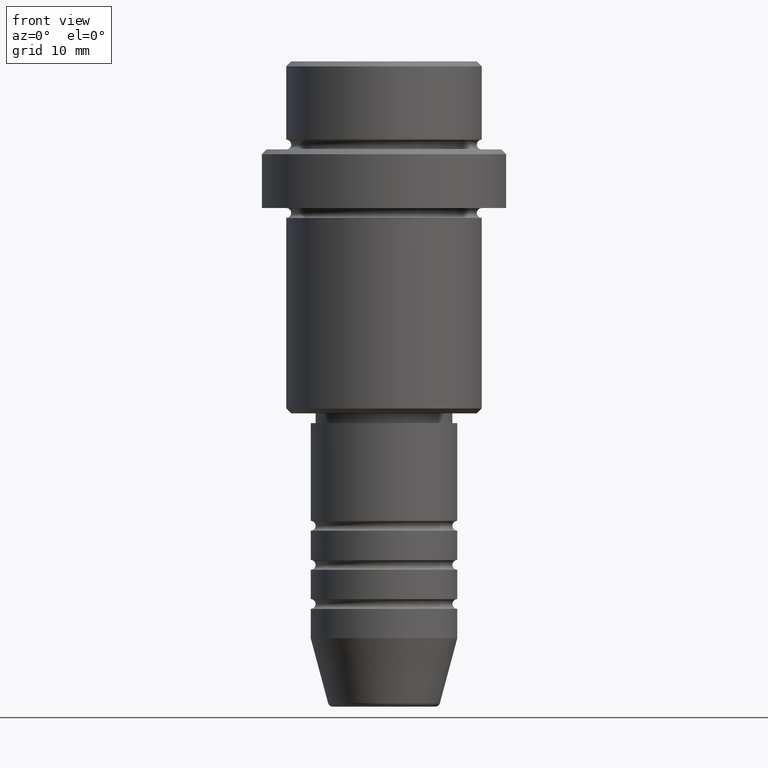
[diagram: clean part render]
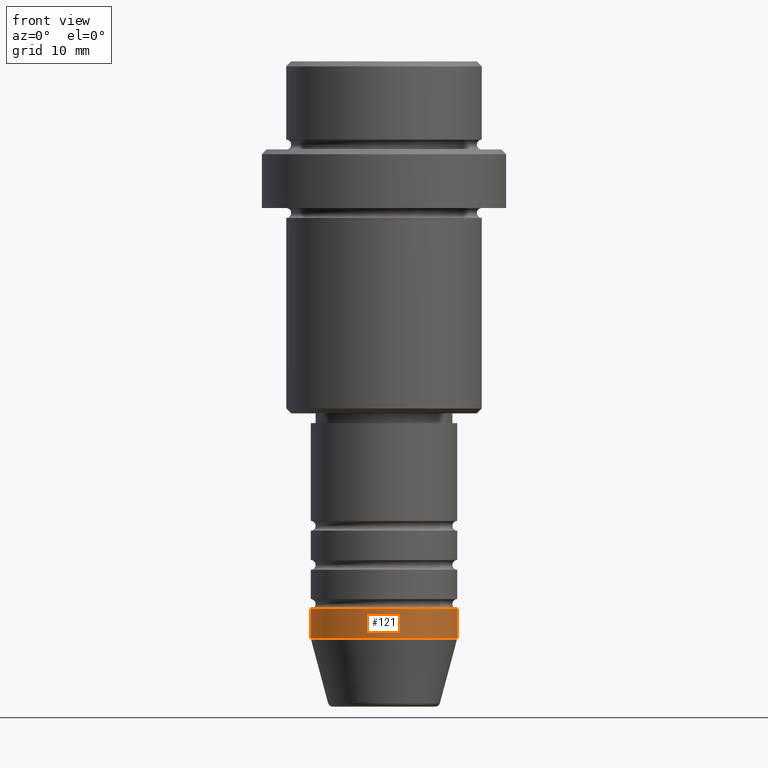
[diagram: same view with one face highlighted and labeled with its STEP entity id]
A machine part, front view. The second image highlights one B-rep face of the part: STEP entity #121.
In plain terms, the highlighted cylindrical surface (partial cylindrical patch) has radius 7.5 mm, axis along (-0, -0, 1).
Its self-contained STEP definition (entity closure, byte-faithful):
#40 = VERTEX_POINT ( 'NONE', #570 ) ;
#76 = CIRCLE ( 'NONE', #441, 7.500000000000000000 ) ;
#104 = CARTESIAN_POINT ( 'NONE',  ( -7.500000000000000000, 9.184850993605147944E-16, 0.000000000000000000 ) ) ;
#121 = ADVANCED_FACE ( 'NONE', ( #1340 ), #688, .T. ) ;
#138 = CARTESIAN_POINT ( 'NONE',  ( 7.500000000000000000, 0.000000000000000000, -59.00000000000000000 ) ) ;
#140 = ORIENTED_EDGE ( 'NONE', *, *, #1179, .F. ) ;
#166 = CARTESIAN_POINT ( 'NONE',  ( 7.500000000000000000, 0.000000000000000000, 0.000000000000000000 ) ) ;
#178 = AXIS2_PLACEMENT_3D ( 'NONE', #1260, #576, #1127 ) ;
#179 = LINE ( 'NONE', #166, #830 ) ;
#198 = LINE ( 'NONE', #104, #267 ) ;
#204 = CARTESIAN_POINT ( 'NONE',  ( -7.500000000000000000, 9.184850993605147944E-16, -59.00000000000000000 ) ) ;
#267 = VECTOR ( 'NONE', #1065, 1000.000000000000000 ) ;
#294 = EDGE_LOOP ( 'NONE', ( #584, #1379, #1276, #140 ) ) ;
#300 = DIRECTION ( 'NONE',  ( -0.000000000000000000, -0.000000000000000000, 1.000000000000000000 ) ) ;
#311 = CARTESIAN_POINT ( 'NONE',  ( 7.500000000000000000, 0.000000000000000000, -55.99999999999999289 ) ) ;
#397 = AXIS2_PLACEMENT_3D ( 'NONE', #782, #891, #988 ) ;
#441 = AXIS2_PLACEMENT_3D ( 'NONE', #525, #300, #975 ) ;
#490 = VERTEX_POINT ( 'NONE', #204 ) ;
#525 = CARTESIAN_POINT ( 'NONE',  ( 0.000000000000000000, 0.000000000000000000, -59.00000000000000000 ) ) ;
#570 = CARTESIAN_POINT ( 'NONE',  ( -7.500000000000000000, 9.184850993605147944E-16, -55.99999999999999289 ) ) ;
#576 = DIRECTION ( 'NONE',  ( -0.000000000000000000, -0.000000000000000000, 1.000000000000000000 ) ) ;
#584 = ORIENTED_EDGE ( 'NONE', *, *, #599, .F. ) ;
#599 = EDGE_CURVE ( 'NONE', #490, #40, #198, .T. ) ;
#618 = VERTEX_POINT ( 'NONE', #311 ) ;
#629 = EDGE_CURVE ( 'NONE', #490, #837, #76, .T. ) ;
#688 = CYLINDRICAL_SURFACE ( 'NONE', #178, 7.500000000000000000 ) ;
#782 = CARTESIAN_POINT ( 'NONE',  ( 0.000000000000000000, 0.000000000000000000, -55.99999999999999289 ) ) ;
#830 = VECTOR ( 'NONE', #938, 1000.000000000000000 ) ;
#837 = VERTEX_POINT ( 'NONE', #138 ) ;
#839 = EDGE_CURVE ( 'NONE', #837, #618, #179, .T. ) ;
#891 = DIRECTION ( 'NONE',  ( -0.000000000000000000, -0.000000000000000000, 1.000000000000000000 ) ) ;
#938 = DIRECTION ( 'NONE',  ( -0.000000000000000000, -0.000000000000000000, 1.000000000000000000 ) ) ;
#972 = CIRCLE ( 'NONE', #397, 7.500000000000000000 ) ;
#975 = DIRECTION ( 'NONE',  ( 1.000000000000000000, 0.000000000000000000, 0.000000000000000000 ) ) ;
#988 = DIRECTION ( 'NONE',  ( 1.000000000000000000, 0.000000000000000000, 0.000000000000000000 ) ) ;
#1065 = DIRECTION ( 'NONE',  ( -0.000000000000000000, -0.000000000000000000, 1.000000000000000000 ) ) ;
#1127 = DIRECTION ( 'NONE',  ( 1.000000000000000000, 0.000000000000000000, 0.000000000000000000 ) ) ;
#1179 = EDGE_CURVE ( 'NONE', #40, #618, #972, .T. ) ;
#1260 = CARTESIAN_POINT ( 'NONE',  ( 0.000000000000000000, 0.000000000000000000, 0.000000000000000000 ) ) ;
#1276 = ORIENTED_EDGE ( 'NONE', *, *, #839, .T. ) ;
#1340 = FACE_OUTER_BOUND ( 'NONE', #294, .T. ) ;
#1379 = ORIENTED_EDGE ( 'NONE', *, *, #629, .T. ) ;